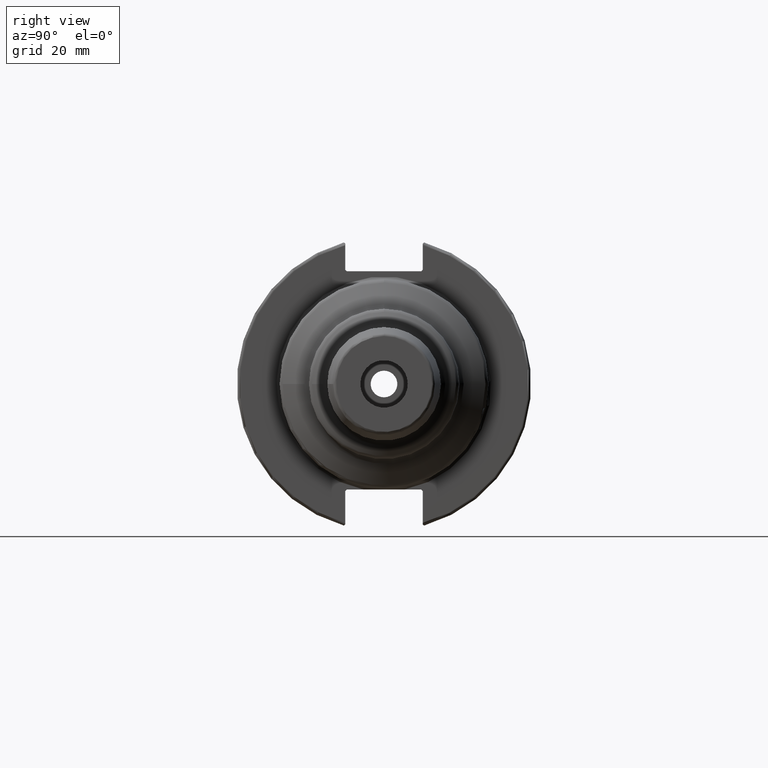
[diagram: clean part render]
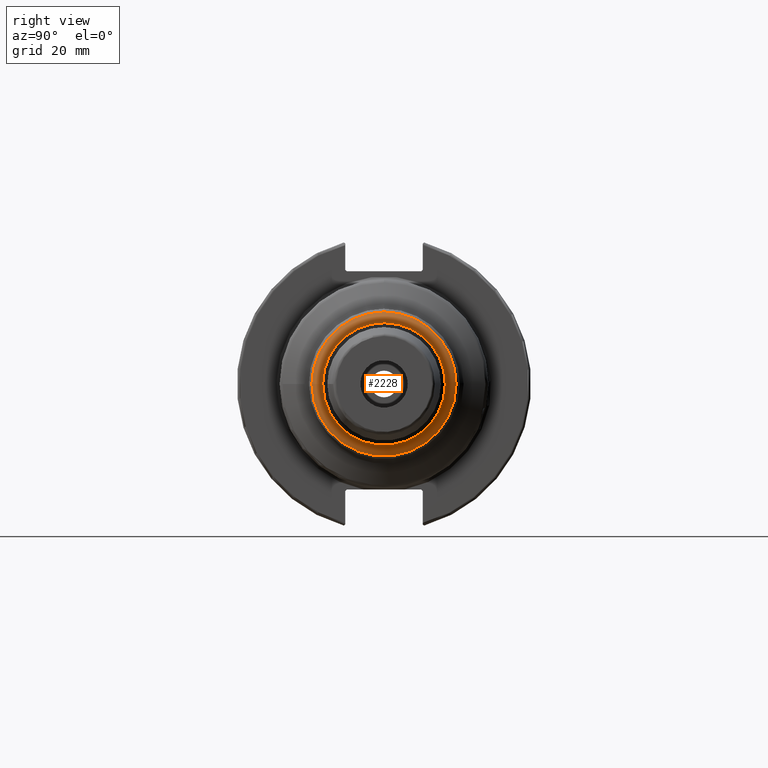
[diagram: same view with one face highlighted and labeled with its STEP entity id]
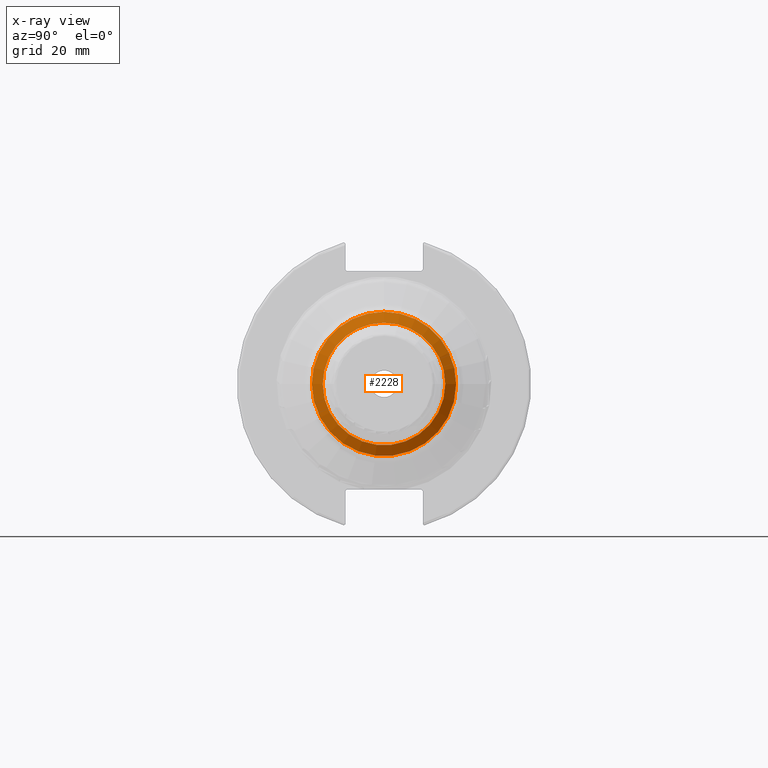
[diagram: x-ray of the same camera — body ghosted, the highlighted face saturated]
A machine part, right view. The second image highlights one B-rep face of the part: STEP entity #2228.
The next image is the same camera in x-ray: the body ghosted, the highlighted face saturated — about 0% of this face is hidden behind the body in this view.
In plain terms, the highlighted conical surface has half-angle 60 deg.
Its self-contained STEP definition (entity closure, byte-faithful):
#156=CONICAL_SURFACE('',#2436,22.0625,1.0471975511966);
#193=FACE_OUTER_BOUND('',#307,.T.);
#307=EDGE_LOOP('',(#1622,#1623,#1624,#1625,#1626,#1627,#1628,#1629));
#427=LINE('',#3638,#534);
#534=VECTOR('',#2864,22.0625);
#699=CIRCLE('',#2432,20.5);
#701=CIRCLE('',#2434,20.5);
#702=CIRCLE('',#2435,20.5);
#703=CIRCLE('',#2437,24.125);
#704=CIRCLE('',#2438,24.125);
#705=CIRCLE('',#2439,24.125);
#892=VERTEX_POINT('',#3629);
#893=VERTEX_POINT('',#3630);
#894=VERTEX_POINT('',#3633);
#895=VERTEX_POINT('',#3637);
#896=VERTEX_POINT('',#3639);
#897=VERTEX_POINT('',#3641);
#1175=EDGE_CURVE('',#892,#893,#699,.T.);
#1177=EDGE_CURVE('',#893,#894,#701,.T.);
#1178=EDGE_CURVE('',#894,#892,#702,.T.);
#1179=EDGE_CURVE('',#894,#895,#427,.T.);
#1180=EDGE_CURVE('',#896,#895,#703,.T.);
#1181=EDGE_CURVE('',#897,#896,#704,.T.);
#1182=EDGE_CURVE('',#895,#897,#705,.T.);
#1622=ORIENTED_EDGE('',*,*,#1175,.F.);
#1623=ORIENTED_EDGE('',*,*,#1178,.F.);
#1624=ORIENTED_EDGE('',*,*,#1179,.T.);
#1625=ORIENTED_EDGE('',*,*,#1180,.F.);
#1626=ORIENTED_EDGE('',*,*,#1181,.F.);
#1627=ORIENTED_EDGE('',*,*,#1182,.F.);
#1628=ORIENTED_EDGE('',*,*,#1179,.F.);
#1629=ORIENTED_EDGE('',*,*,#1177,.F.);
#2228=ADVANCED_FACE('',(#193),#156,.T.);
#2432=AXIS2_PLACEMENT_3D('',#3631,#2854,#2855);
#2434=AXIS2_PLACEMENT_3D('',#3634,#2858,#2859);
#2435=AXIS2_PLACEMENT_3D('',#3635,#2860,#2861);
#2436=AXIS2_PLACEMENT_3D('',#3636,#2862,#2863);
#2437=AXIS2_PLACEMENT_3D('',#3640,#2865,#2866);
#2438=AXIS2_PLACEMENT_3D('',#3642,#2867,#2868);
#2439=AXIS2_PLACEMENT_3D('',#3643,#2869,#2870);
#2854=DIRECTION('center_axis',(1.,0.,0.));
#2855=DIRECTION('ref_axis',(0.,-1.,3.06161699786838E-17));
#2858=DIRECTION('center_axis',(1.,0.,0.));
#2859=DIRECTION('ref_axis',(0.,-1.,3.06161699786838E-17));
#2860=DIRECTION('center_axis',(1.,0.,0.));
#2861=DIRECTION('ref_axis',(0.,-1.,3.06161699786838E-17));
#2862=DIRECTION('center_axis',(-1.,0.,0.));
#2863=DIRECTION('ref_axis',(0.,1.,0.));
#2864=DIRECTION('',(-0.5,-0.866025403784439,-1.06057523872491E-16));
#2865=DIRECTION('center_axis',(-1.,0.,0.));
#2866=DIRECTION('ref_axis',(0.,-1.,3.06161699786838E-17));
#2867=DIRECTION('center_axis',(-1.,0.,0.));
#2868=DIRECTION('ref_axis',(0.,-1.,3.06161699786838E-17));
#2869=DIRECTION('center_axis',(-1.,0.,0.));
#2870=DIRECTION('ref_axis',(0.,-1.,3.06161699786838E-17));
#3629=CARTESIAN_POINT('',(53.2339745962156,20.5,-1.25526296912604E-15));
#3630=CARTESIAN_POINT('',(53.2339745962156,-2.51052593825207E-15,20.5));
#3631=CARTESIAN_POINT('Origin',(53.2339745962156,0.,-3.13815742281509E-15));
#3633=CARTESIAN_POINT('',(53.2339745962156,-20.5,-2.51052593825207E-15));
#3634=CARTESIAN_POINT('Origin',(53.2339745962156,0.,-3.13815742281509E-15));
#3635=CARTESIAN_POINT('Origin',(53.2339745962156,0.,-3.13815742281509E-15));
#3636=CARTESIAN_POINT('Origin',(52.3318648006068,0.,0.));
#3637=CARTESIAN_POINT('',(51.1410798704032,-24.125,-2.95446040294299E-15));
#3638=CARTESIAN_POINT('',(52.3318648006068,-22.0625,-2.70187700061885E-15));
#3639=CARTESIAN_POINT('',(51.1410798704032,24.125,-7.38615100735747E-15));
#3640=CARTESIAN_POINT('Origin',(51.1410798704032,0.,-3.69307550367873E-15));
#3641=CARTESIAN_POINT('',(51.1410798704032,-2.95446040294299E-15,24.125));
#3642=CARTESIAN_POINT('Origin',(51.1410798704032,0.,-3.69307550367873E-15));
#3643=CARTESIAN_POINT('Origin',(51.1410798704032,0.,-3.69307550367873E-15));